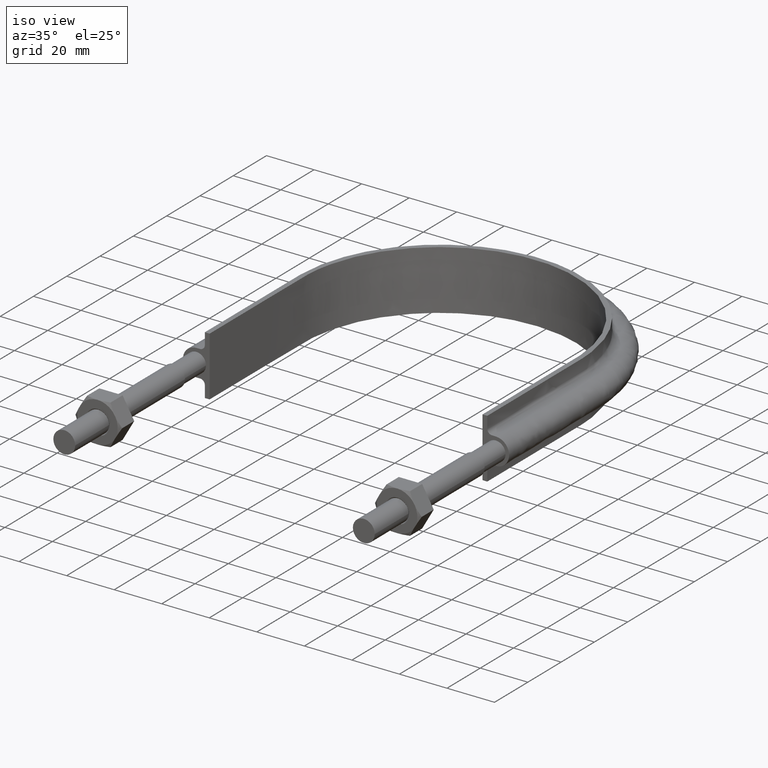
[diagram: clean part render]
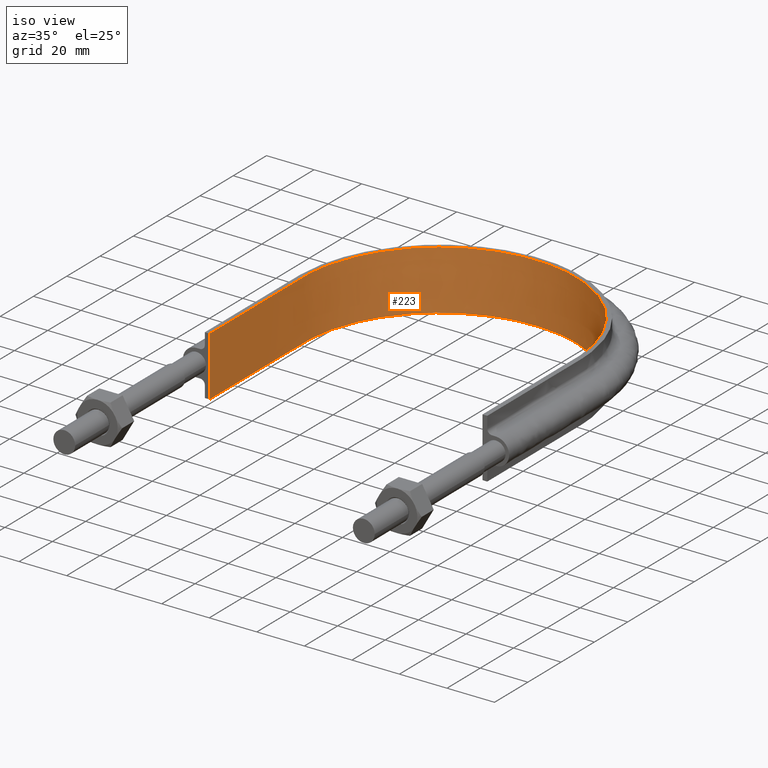
[diagram: same view with one face highlighted and labeled with its STEP entity id]
A machine part, iso view. The second image highlights one B-rep face of the part: STEP entity #223.
In plain terms, the highlighted face is a SurfaceOfExtrusion surface.
Its self-contained STEP definition (entity closure, byte-faithful):
#223 = ADVANCED_FACE( '', ( #303 ), #304, .T. );
#303 = FACE_OUTER_BOUND( '', #965, .T. );
#304 = SURFACE_OF_LINEAR_EXTRUSION( '', #966, #967 );
#965 = EDGE_LOOP( '', ( #1309, #1310, #1311, #1312 ) );
#966 = B_SPLINE_CURVE_WITH_KNOTS( '', 3, ( #1313, #1314, #1315, #1316, #1317, #1318, #1319, #1320, #1321, #1322, #1323, #1324, #1325, #1326, #1327, #1328 ), .UNSPECIFIED., .F., .F., ( 4, 3, 1, 1, 1, 1, 1, 1, 3, 4 ), ( -8.93693843594010, -8.00000000000000, -7.00000000000000, -6.00000000000000, -5.00000000000000, -4.00000000000000, -3.00000000000000, -2.00000000000000, -1.00000000000000, -0.0630615640599001 ), .UNSPECIFIED. );
#967 = VECTOR( '', #1329, 1000.00000000000 );
#1309 = ORIENTED_EDGE( '', *, *, #1817, .T. );
#1310 = ORIENTED_EDGE( '', *, *, #1828, .T. );
#1311 = ORIENTED_EDGE( '', *, *, #1824, .F. );
#1312 = ORIENTED_EDGE( '', *, *, #1821, .T. );
#1313 = CARTESIAN_POINT( '', ( 57.4000000000000, 79.3000000000000, 12.5000100000910 ) );
#1314 = CARTESIAN_POINT( '', ( 57.4000000000000, 98.0700000000000, 12.5000100000910 ) );
#1315 = CARTESIAN_POINT( '', ( 57.4000000000000, 116.840000000000, 12.5000100000910 ) );
#1316 = CARTESIAN_POINT( '', ( 57.4000000000000, 135.610000000000, 12.5000100000910 ) );
#1317 = CARTESIAN_POINT( '', ( 57.4000000000000, 144.180493203978, 12.5000100000910 ) );
#1318 = CARTESIAN_POINT( '', ( 53.4810424094545, 161.371852668646, 12.5000100000910 ) );
#1319 = CARTESIAN_POINT( '', ( 37.0100296725023, 182.017335605858, 12.5000100000910 ) );
#1320 = CARTESIAN_POINT( '', ( 13.2087266606841, 193.481567469912, 12.5000100000910 ) );
#1321 = CARTESIAN_POINT( '', ( -13.2087266606841, 193.481567469912, 12.5000100000910 ) );
#1322 = CARTESIAN_POINT( '', ( -37.0100296725023, 182.017335605858, 12.5000100000910 ) );
#1323 = CARTESIAN_POINT( '', ( -53.4810424094545, 161.371852668646, 12.5000100000910 ) );
#1324 = CARTESIAN_POINT( '', ( -57.4000000000000, 144.180493203978, 12.5000100000910 ) );
#1325 = CARTESIAN_POINT( '', ( -57.4000000000000, 135.610000000000, 12.5000100000910 ) );
#1326 = CARTESIAN_POINT( '', ( -57.4000000000000, 116.840000000000, 12.5000100000910 ) );
#1327 = CARTESIAN_POINT( '', ( -57.4000000000000, 98.0700000000000, 12.5000100000910 ) );
#1328 = CARTESIAN_POINT( '', ( -57.4000000000000, 79.3000000000000, 12.5000100000910 ) );
#1329 = DIRECTION( '', ( 0.000000000000000, 0.000000000000000, -1.00000000000000 ) );
#1817 = EDGE_CURVE( '', #1967, #1968, #1969, .T. );
#1821 = EDGE_CURVE( '', #1975, #1967, #1976, .T. );
#1824 = EDGE_CURVE( '', #1975, #1980, #1981, .T. );
#1828 = EDGE_CURVE( '', #1968, #1980, #1986, .F. );
#1967 = VERTEX_POINT( '', #2213 );
#1968 = VERTEX_POINT( '', #2214 );
#1969 = LINE( '', #2215, #2216 );
#1975 = VERTEX_POINT( '', #2254 );
#1976 = B_SPLINE_CURVE_WITH_KNOTS( '', 3, ( #2255, #2256, #2257, #2258, #2259, #2260, #2261, #2262, #2263, #2264, #2265, #2266, #2267, #2268, #2269, #2270, #2271, #2272, #2273, #2274, #2275, #2276, #2277, #2278, #2279, #2280, #2281, #2282, #2283, #2284, #2285, #2286, #2287, #2288, #2289, #2290, #2291, #2292, #2293, #2294, #2295, #2296, #2297, #2298, #2299, #2300, #2301, #2302, #2303, #2304, #2305, #2306, #2307, #2308, #2309, #2310, #2311, #2312, #2313, #2314, #2315, #2316, #2317, #2318, #2319, #2320, #2321, #2322, #2323, #2324, #2325, #2326, #2327, #2328, #2329, #2330, #2331, #2332, #2333, #2334, #2335, #2336, #2337, #2338, #2339, #2340, #2341, #2342 ), .UNSPECIFIED., .F., .F., ( 4, 1, 2, 2, 2, 2, 2, 2, 2, 2, 2, 2, 2, 2, 2, 2, 2, 2, 2, 2, 2, 2, 2, 2, 2, 2, 2, 2, 2, 2, 2, 2, 2, 2, 2, 2, 2, 2, 2, 2, 2, 2, 2, 1, 4 ), ( 1.38777878078145E-017, 0.0368006591004065, 0.0552009886506098, 0.0575010298443853, 0.0598010710381607, 0.0644011534257116, 0.0736013182008134, 0.0782014005883642, 0.0805014417821396, 0.0828014829759150, 0.0920016477510166, 0.0966017301385674, 0.0989017713323428, 0.101201812526118, 0.110401977301220, 0.115002059688771, 0.117302100882546, 0.119602142076322, 0.128802306851423, 0.133402389238974, 0.135702430432750, 0.138002471626525, 0.147202636401627, 0.156402801176729, 0.158702842370504, 0.161002883564280, 0.165602965951830, 0.174803130726932, 0.177103171920708, 0.179403213114483, 0.184003295502034, 0.193203460277136, 0.195503501470911, 0.197803542664687, 0.202403625052238, 0.211603789827340, 0.213903831021115, 0.216203872214890, 0.220803954602441, 0.230004119377543, 0.234604201765094, 0.236904242958870, 0.239204284152645, 0.257604613702848, 0.294405272803255 ), .UNSPECIFIED. );
#1980 = VERTEX_POINT( '', #2362 );
#1981 = LINE( '', #2363, #2364 );
#1986 = B_SPLINE_CURVE_WITH_KNOTS( '', 3, ( #2415, #2416, #2417, #2418, #2419, #2420, #2421, #2422, #2423, #2424, #2425, #2426, #2427, #2428, #2429, #2430 ), .UNSPECIFIED., .F., .F., ( 4, 3, 1, 1, 1, 1, 1, 1, 3, 4 ), ( -8.93693843594010, -8.00000000000000, -7.00000000000000, -6.00000000000000, -5.00000000000000, -4.00000000000000, -3.00000000000000, -2.00000000000000, -1.00000000000000, -0.0630615640599001 ), .UNSPECIFIED. );
#2213 = CARTESIAN_POINT( '', ( -57.4000000000000, 79.3000000000000, 12.5000000000000 ) );
#2214 = CARTESIAN_POINT( '', ( -57.4000000000000, 79.3000000000000, -12.5000000000000 ) );
#2215 = CARTESIAN_POINT( '', ( -57.4000000000000, 79.3000000000000, 12.5000100000910 ) );
#2216 = VECTOR( '', #2855, 1000.00000000000 );
#2254 = CARTESIAN_POINT( '', ( 57.4000000000000, 79.3000000000000, 12.5000000000000 ) );
#2255 = CARTESIAN_POINT( '', ( 57.4000000000000, 79.3000000000000, 12.5000000000000 ) );
#2256 = CARTESIAN_POINT( '', ( 57.4000000000000, 91.5668971504807, 12.5000000000000 ) );
#2257 = CARTESIAN_POINT( '', ( 57.4000000000000, 109.967242876202, 12.5000000000000 ) );
#2258 = CARTESIAN_POINT( '', ( 57.4000000000000, 128.367588601923, 12.5000000000000 ) );
#2259 = CARTESIAN_POINT( '', ( 57.4000000000000, 135.267718249068, 12.5000000000000 ) );
#2260 = CARTESIAN_POINT( '', ( 57.4036066457802, 136.034404103252, 12.5000000000000 ) );
#2261 = CARTESIAN_POINT( '', ( 57.3712056389476, 137.567723284528, 12.5000000000000 ) );
#2262 = CARTESIAN_POINT( '', ( 57.3393359788148, 138.335375304587, 12.5000000000000 ) );
#2263 = CARTESIAN_POINT( '', ( 57.1976234100830, 140.630663469964, 12.5000000000000 ) );
#2264 = CARTESIAN_POINT( '', ( 57.0421967518527, 142.147180453960, 12.5000000000000 ) );
#2265 = CARTESIAN_POINT( '', ( 56.4004013757545, 146.657352705709, 12.5000000000000 ) );
#2266 = CARTESIAN_POINT( '', ( 55.7399883057786, 149.611959318388, 12.5000000000000 ) );
#2267 = CARTESIAN_POINT( '', ( 54.4013047063943, 153.965777471156, 12.5000000000000 ) );
#2268 = CARTESIAN_POINT( '', ( 53.8966972928596, 155.403952132018, 12.5000000000000 ) );
#2269 = CARTESIAN_POINT( '', ( 53.0487681131459, 157.540793277909, 12.5000000000000 ) );
#2270 = CARTESIAN_POINT( '', ( 52.7511260023257, 158.248939019185, 12.5000000000000 ) );
#2271 = CARTESIAN_POINT( '', ( 52.1306487491249, 159.645579267383, 12.5000000000000 ) );
#2272 = CARTESIAN_POINT( '', ( 51.8071932048134, 160.335643312284, 12.5000000000000 ) );
#2273 = CARTESIAN_POINT( '', ( 50.1243560027938, 163.745011154793, 12.5000000000000 ) );
#2274 = CARTESIAN_POINT( '', ( 48.5704537429598, 166.342805722192, 12.5000000000000 ) );
#2275 = CARTESIAN_POINT( '', ( 45.9378759805746, 170.051022440817, 12.5000000000000 ) );
#2276 = CARTESIAN_POINT( '', ( 45.0097482486540, 171.255485755391, 12.5000000000000 ) );
#2277 = CARTESIAN_POINT( '', ( 43.5399840512470, 173.013724230868, 12.5000000000000 ) );
#2278 = CARTESIAN_POINT( '', ( 43.0360401908088, 173.592882580464, 12.5000000000000 ) );
#2279 = CARTESIAN_POINT( '', ( 42.0071679355062, 174.728730541199, 12.5000000000000 ) );
#2280 = CARTESIAN_POINT( '', ( 41.4830799771195, 175.284602734684, 12.5000000000000 ) );
#2281 = CARTESIAN_POINT( '', ( 38.8150256208345, 178.004509636062, 12.5000000000000 ) );
#2282 = CARTESIAN_POINT( '', ( 36.5289375337688, 179.991083678086, 12.5000000000000 ) );
#2283 = CARTESIAN_POINT( '', ( 32.8725465474708, 182.687177301449, 12.5000000000000 ) );
#2284 = CARTESIAN_POINT( '', ( 31.6159998625507, 183.538738914915, 12.5000000000000 ) );
#2285 = CARTESIAN_POINT( '', ( 29.6741600235066, 184.744883379300, 12.5000000000000 ) );
#2286 = CARTESIAN_POINT( '', ( 29.0173621705766, 185.135046972002, 12.5000000000000 ) );
#2287 = CARTESIAN_POINT( '', ( 27.6844813094560, 185.891293691475, 12.5000000000000 ) );
#2288 = CARTESIAN_POINT( '', ( 27.0092860879621, 186.256786401143, 12.5000000000000 ) );
#2289 = CARTESIAN_POINT( '', ( 23.6148955512581, 188.008321558919, 12.5000000000000 ) );
#2290 = CARTESIAN_POINT( '', ( 20.8188839208598, 189.181221130253, 12.5000000000000 ) );
#2291 = CARTESIAN_POINT( '', ( 16.5063575914378, 190.604430974849, 12.5000000000000 ) );
#2292 = CARTESIAN_POINT( '', ( 15.0489724833801, 191.022456876127, 12.5000000000000 ) );
#2293 = CARTESIAN_POINT( '', ( 12.8322199583376, 191.562489310090, 12.5000000000000 ) );
#2294 = CARTESIAN_POINT( '', ( 12.0881682606315, 191.727937467103, 12.5000000000000 ) );
#2295 = CARTESIAN_POINT( '', ( 10.5896803128534, 192.029378956679, 12.5000000000000 ) );
#2296 = CARTESIAN_POINT( '', ( 9.83354107507642, 192.165648447286, 12.5000000000000 ) );
#2297 = CARTESIAN_POINT( '', ( 6.05033946504669, 192.768951449387, 12.5000000000000 ) );
#2298 = CARTESIAN_POINT( '', ( 3.02331961872748, 193.004107282322, 12.5000000000000 ) );
#2299 = CARTESIAN_POINT( '', ( -3.03159229771705, 193.003674706655, 12.5000000000000 ) );
#2300 = CARTESIAN_POINT( '', ( -6.05948435362845, 192.768093969407, 12.5000000000000 ) );
#2301 = CARTESIAN_POINT( '', ( -9.84492369258702, 192.163681704027, 12.5000000000000 ) );
#2302 = CARTESIAN_POINT( '', ( -10.6002721762767, 192.027389123450, 12.5000000000000 ) );
#2303 = CARTESIAN_POINT( '', ( -12.0978185021847, 191.725853405145, 12.5000000000000 ) );
#2304 = CARTESIAN_POINT( '', ( -12.8414452252183, 191.560367013091, 12.5000000000000 ) );
#2305 = CARTESIAN_POINT( '', ( -15.0570550081488, 191.020235378931, 12.5000000000000 ) );
#2306 = CARTESIAN_POINT( '', ( -16.5138535706966, 190.602163316093, 12.5000000000000 ) );
#2307 = CARTESIAN_POINT( '', ( -20.8250913381979, 189.178758755140, 12.5000000000000 ) );
#2308 = CARTESIAN_POINT( '', ( -23.6208691240754, 188.005657850112, 12.5000000000000 ) );
#2309 = CARTESIAN_POINT( '', ( -27.0156329102763, 186.253406103617, 12.5000000000000 ) );
#2310 = CARTESIAN_POINT( '', ( -27.6910147520962, 185.887696886022, 12.5000000000000 ) );
#2311 = CARTESIAN_POINT( '', ( -29.0234575114926, 185.131477440111, 12.5000000000000 ) );
#2312 = CARTESIAN_POINT( '', ( -29.6800585802789, 184.741324040592, 12.5000000000000 ) );
#2313 = CARTESIAN_POINT( '', ( -31.6213689725300, 183.535193660409, 12.5000000000000 ) );
#2314 = CARTESIAN_POINT( '', ( -32.8776437603807, 182.683619457022, 12.5000000000000 ) );
#2315 = CARTESIAN_POINT( '', ( -36.5334220827475, 179.987374398228, 12.5000000000000 ) );
#2316 = CARTESIAN_POINT( '', ( -38.8193751731555, 178.000549631674, 12.5000000000000 ) );
#2317 = CARTESIAN_POINT( '', ( -41.4874843976752, 175.279993585617, 12.5000000000000 ) );
#2318 = CARTESIAN_POINT( '', ( -42.0115944312470, 174.723974530570, 12.5000000000000 ) );
#2319 = CARTESIAN_POINT( '', ( -43.0405299781914, 173.587794110931, 12.5000000000000 ) );
#2320 = CARTESIAN_POINT( '', ( -43.5442393747026, 173.008765306377, 12.5000000000000 ) );
#2321 = CARTESIAN_POINT( '', ( -45.0135877457228, 171.250627800789, 12.5000000000000 ) );
#2322 = CARTESIAN_POINT( '', ( -45.9415210243653, 170.046162448528, 12.5000000000000 ) );
#2323 = CARTESIAN_POINT( '', ( -48.5736917716305, 166.337694282144, 12.5000000000000 ) );
#2324 = CARTESIAN_POINT( '', ( -50.1275589688897, 163.739408642437, 12.5000000000000 ) );
#2325 = CARTESIAN_POINT( '', ( -51.8104283189418, 160.328866111214, 12.5000000000000 ) );
#2326 = CARTESIAN_POINT( '', ( -52.1338941649285, 159.638538815899, 12.5000000000000 ) );
#2327 = CARTESIAN_POINT( '', ( -52.7543954652597, 158.241312252746, 12.5000000000000 ) );
#2328 = CARTESIAN_POINT( '', ( -53.0520667494113, 157.532782600104, 12.5000000000000 ) );
#2329 = CARTESIAN_POINT( '', ( -53.8993605656225, 155.396631283103, 12.5000000000000 ) );
#2330 = CARTESIAN_POINT( '', ( -54.4036525659498, 153.958777453083, 12.5000000000000 ) );
#2331 = CARTESIAN_POINT( '', ( -55.7415838846628, 149.605493588584, 12.5000000000000 ) );
#2332 = CARTESIAN_POINT( '', ( -56.4017548199478, 146.650676383386, 12.5000000000000 ) );
#2333 = CARTESIAN_POINT( '', ( -57.0431251208449, 142.139233624254, 12.5000000000000 ) );
#2334 = CARTESIAN_POINT( '', ( -57.1984001624354, 140.622133130998, 12.5000000000000 ) );
#2335 = CARTESIAN_POINT( '', ( -57.3398068241163, 138.325705356889, 12.5000000000000 ) );
#2336 = CARTESIAN_POINT( '', ( -57.3715266179354, 137.558403382567, 12.5000000000000 ) );
#2337 = CARTESIAN_POINT( '', ( -57.4036727794919, 136.025333757737, 12.5000000000000 ) );
#2338 = CARTESIAN_POINT( '', ( -57.4000000000000, 135.258769855845, 12.5000000000000 ) );
#2339 = CARTESIAN_POINT( '', ( -57.4000000000000, 128.359743435262, 12.5000000000000 ) );
#2340 = CARTESIAN_POINT( '', ( -57.4000000000000, 109.962339647039, 12.5000000000000 ) );
#2341 = CARTESIAN_POINT( '', ( -57.4000000000000, 91.5649358588154, 12.5000000000000 ) );
#2342 = CARTESIAN_POINT( '', ( -57.4000000000000, 79.2999999999999, 12.5000000000000 ) );
#2362 = CARTESIAN_POINT( '', ( 57.4000000000000, 79.3000000000000, -12.5000000000000 ) );
#2363 = CARTESIAN_POINT( '', ( 57.4000000000000, 79.3000000000000, 12.5000100000910 ) );
#2364 = VECTOR( '', #2859, 1000.00000000000 );
#2415 = CARTESIAN_POINT( '', ( 57.4000000000000, 79.3000000000000, -12.5000000000000 ) );
#2416 = CARTESIAN_POINT( '', ( 57.4000000000000, 98.0700000000000, -12.5000000000000 ) );
#2417 = CARTESIAN_POINT( '', ( 57.4000000000000, 116.840000000000, -12.5000000000000 ) );
#2418 = CARTESIAN_POINT( '', ( 57.4000000000000, 135.610000000000, -12.5000000000000 ) );
#2419 = CARTESIAN_POINT( '', ( 57.4000000000000, 144.180493203978, -12.5000000000000 ) );
#2420 = CARTESIAN_POINT( '', ( 53.4810424094545, 161.371852668646, -12.5000000000000 ) );
#2421 = CARTESIAN_POINT( '', ( 37.0100296725023, 182.017335605858, -12.5000000000000 ) );
#2422 = CARTESIAN_POINT( '', ( 13.2087266606841, 193.481567469912, -12.5000000000000 ) );
#2423 = CARTESIAN_POINT( '', ( -13.2087266606841, 193.481567469912, -12.5000000000000 ) );
#2424 = CARTESIAN_POINT( '', ( -37.0100296725023, 182.017335605858, -12.5000000000000 ) );
#2425 = CARTESIAN_POINT( '', ( -53.4810424094545, 161.371852668646, -12.5000000000000 ) );
#2426 = CARTESIAN_POINT( '', ( -57.4000000000000, 144.180493203978, -12.5000000000000 ) );
#2427 = CARTESIAN_POINT( '', ( -57.4000000000000, 135.610000000000, -12.5000000000000 ) );
#2428 = CARTESIAN_POINT( '', ( -57.4000000000000, 116.840000000000, -12.5000000000000 ) );
#2429 = CARTESIAN_POINT( '', ( -57.4000000000000, 98.0700000000000, -12.5000000000000 ) );
#2430 = CARTESIAN_POINT( '', ( -57.4000000000000, 79.3000000000000, -12.5000000000000 ) );
#2855 = DIRECTION( '', ( 0.000000000000000, 0.000000000000000, -1.00000000000000 ) );
#2859 = DIRECTION( '', ( 0.000000000000000, 0.000000000000000, -1.00000000000000 ) );